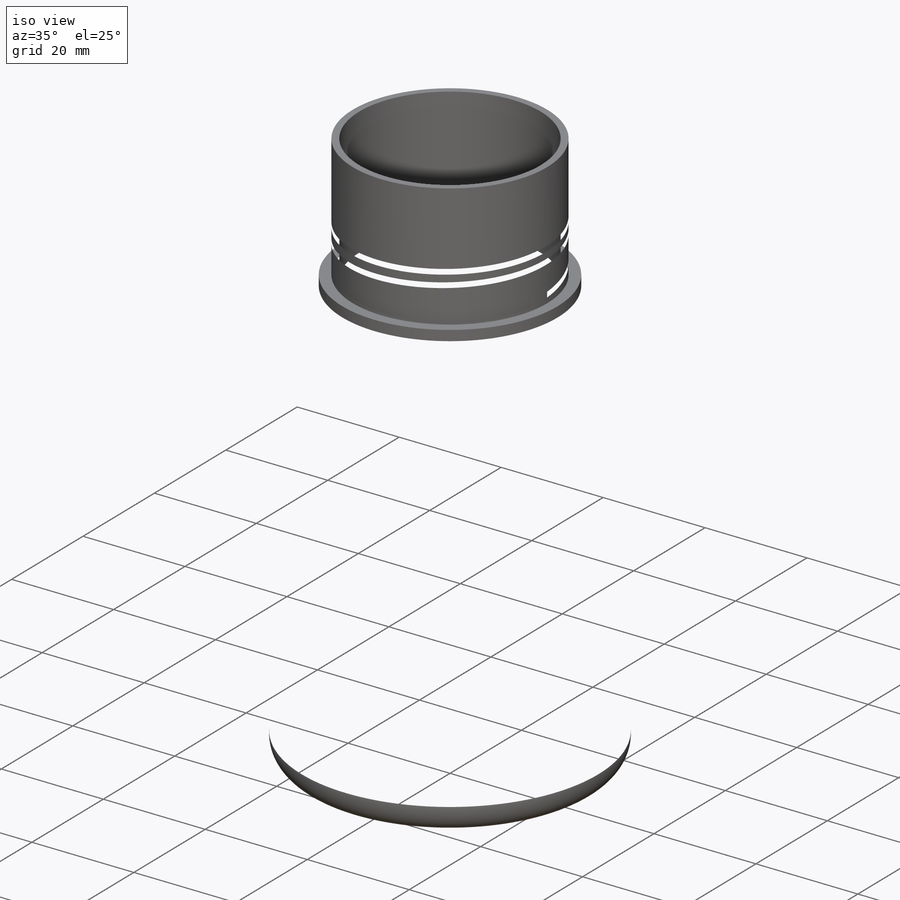
[diagram: iso view]
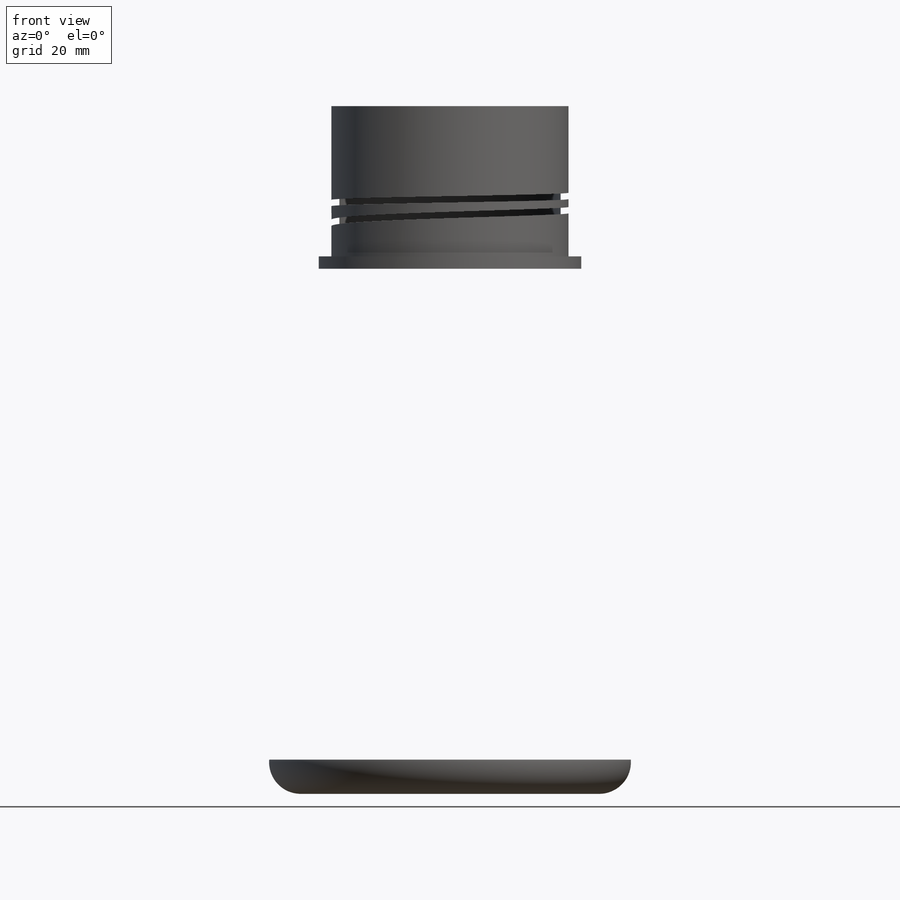
[diagram: front view]
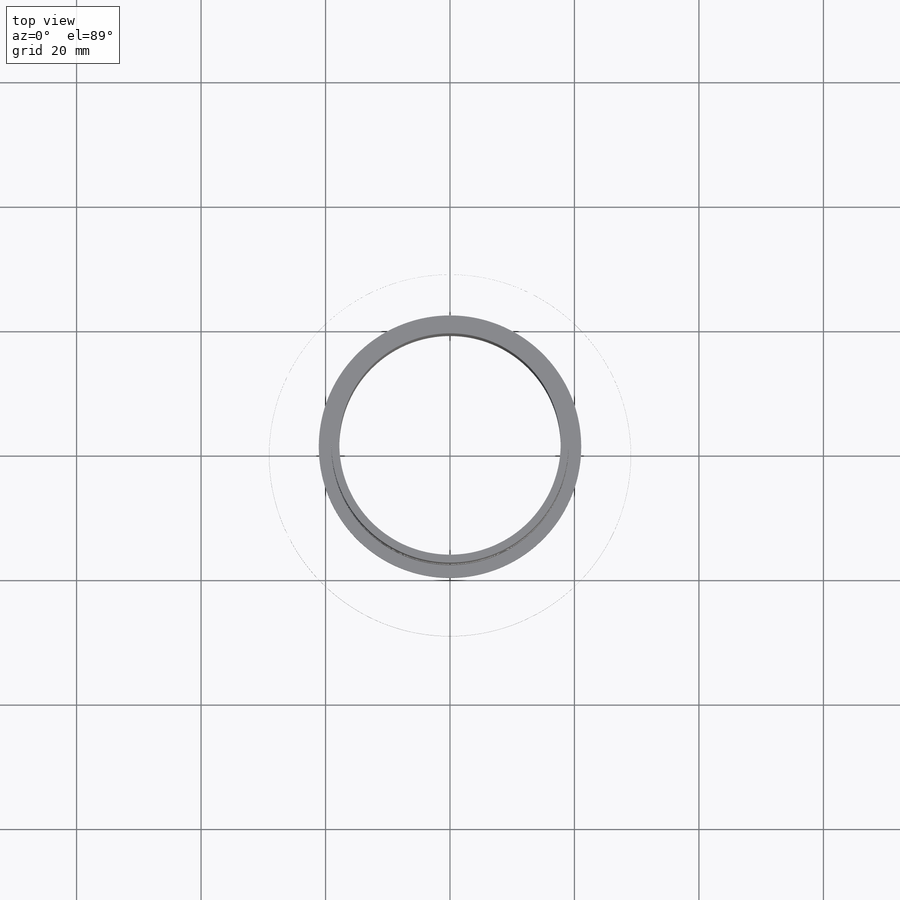
[diagram: top view]
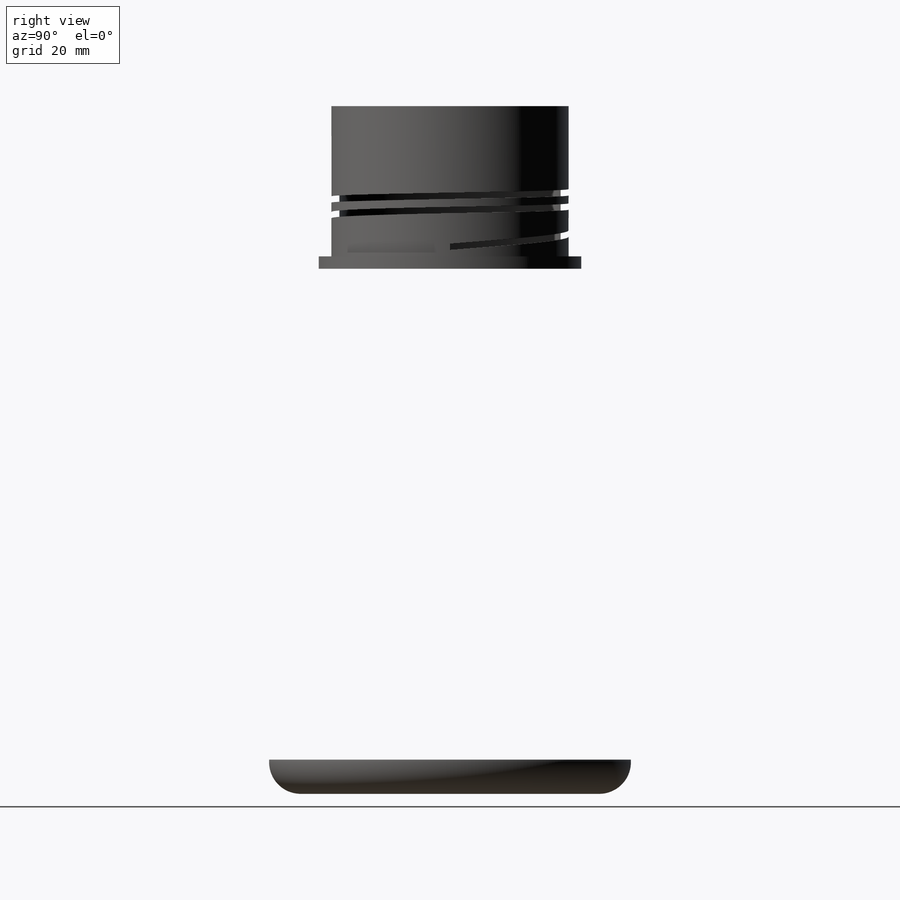
[diagram: right view]
SOLIDWORKS PART (.sldprt)
format: sldprt  version: not decoded by parser v0  size: 4,339,200 bytes
history: native  units: mm
features: sketch x19, plane x6, sweep x4, fillet x4, cut_extrude x3, revolve x2, extrude x2, helix x2, move_body x2, material x1, pattern_circular x1, boolean_combine x1, shell x1 (+13 scaffold rows collapsed)
feature tree (61):
  scaffold x13  (default folders/planes/origin — collapsed)
  material  "Material <not specified>"
  sketch  "Sketch1"  dims[c1.D9=10.16mm c1.D10=5.08mm c1.D8=2.032mm c1.D11=10.16mm c2.D9=10.16mm c2.D12=187.96mm c2.D13=40.64mm c3.D12=15.24mm c3.D13=99.06mm c3.D14=33.02mm c3.D2=5.08mm c3.D15=~50.883883mm c3.D1=152.4mm c4.D2=31.75mm c4.D3=38.1mm c4.D4=20.701mm c4.D5=20.32mm c4.D6=1.27mm c4.D7=17.78mm c4.D8=2.54mm c4.D11=~0.803279mm c4.D12=~13.829222mm c5.D2=50.8mm c5.D14=~45.739925mm c5.D15=2.54mm c5.D16=58.42mm c6.D2=29.21mm c6.D15=50.8mm c6.D16=~21.658464mm c6.D17=~13.146856mm c6.D18=21.59mm c6.D19=~22.066312mm c6.D20=~22.668555mm c6.D21=~23.985227mm c6.D22=~24.792166mm c6.D23=~27.249396mm c6.D24=~27.519761mm c6.D25=~29.04746mm c6.D26=~31.11783mm c6.D27=31.75mm c6.D28=~54.935302mm c6.D29=~120.673281mm c7.D16=50.8mm c7.D17=~52.052571mm c7.D18=55.88mm c7.D19=~56.304491mm c7.D20=~72.825355mm c7.D21=~79.996709mm c7.D22=~86.305406mm c7.D23=~89.459755mm c7.D24=~112.933943mm c7.D25=~113.700811mm c7.D26=~118.768078mm c7.D27=~120.378557mm c7.D28=~123.906453mm c7.D29=~130.667442mm c8.D16=~130.667442mm c8.D10=50.8mm c9.D16=~21.658464mm c9.D17=~13.146856mm c9.D18=21.59mm c9.D19=~22.066312mm c9.D20=~22.668555mm c9.D21=~23.985227mm c9.D22=~24.792166mm c9.D23=~27.249396mm c9.D24=~27.519761mm c9.D25=~29.04746mm c9.D26=~31.11783mm c9.D27=31.75mm c9.D28=~54.935302mm c9.D29=~120.673281mm c10.D16=~21.658464mm c10.D17=~13.146856mm c10.D18=21.59mm c10.D19=~22.066312mm c10.D20=~22.668555mm c10.D21=~23.985227mm]
  revolve  "Revolve2"  Angle=360deg
  sketch  "Sketch21"  dims[D1=35.56mm D2=38.1mm]
  extrude  "Boss-Extrude4"  Depth=8.89mm
  sketch  "Sketch5"  dims[D1=0.889mm D2=1.27mm D3=1.651mm]
  revolve  "Revolve3"  Angle=360deg
  sketch  "Sketch6"  dims[c1.D1=~0.93617mm c2.D1=110.0deg c2.D2=~0.543456mm c3.D2=110.0deg c3.D3=0.762mm c3.D4=11.43mm c3.D5=1.016mm c4.D4=10.668mm]
  plane  "Plane1"  Offset=1.778mm
  sketch  "Sketch7"
  helix  "Helix/Spiral1"  Pitch=5.08mm
  sweep  "Sweep1"
  sketch  "Sketch8"  dims[D1=0.0mm]
  plane  "Plane2"  Offset=10.668mm
  sketch  "Sketch9"  dims[D1=3.175mm]
  sweep  "Sweep2"
  sketch  "Sketch10"  dims[D1=0.0mm]
  plane  "Plane3"  Offset=5.588mm
  sketch  "Sketch11"  dims[D1=3.175mm]
  sweep  "Sweep3"
  sketch  "Sketch22"  dims[D1=~27.105905mm]
  pattern_circular  "CirPattern1"  Count=2 Angle=180deg
  sketch  "Sketch12"  dims[c1.D1=12.065mm c2.D1=30.0deg]
  plane  "Plane4"
  sketch  "Sketch13"  dims[c1.D1=0.254mm c2.D1=115.0deg c3.D1=~0.461309mm c3.D2=~0.677333mm c3.D3=~0.465667mm c4.D3=115.0deg c5.D3=~0.423789mm]
  sketch  "Sketch14"  dims[D1=1.27mm]
  cut_extrude  "Cut-Extrude2"  [1 undecoded]
  plane  "Plane5"  Offset=0mm
  move_body  "Body-Move/Copy1"
  move_body  "Body-Move/Copy2"
  boolean_combine  "Combine1"
  sketch  "Sketch15"  dims[D1=0.0mm]
  sketch  "Sketch17"  dims[D2=22.86mm D1=0.0mm]
  cut_extrude  "Cut-Extrude5"  Depth=2.54mm
  fillet  "Fillet4"  Radius=17.78mm
  shell  "Shell2"  Thickness=1.016mm
  sketch  "Sketch18"  dims[D2=42.164mm D1=0.0mm]
  extrude  "Boss-Extrude2"  [1 undecoded]
  plane  "Plane6"  Offset=1.016mm
  sketch  "Sketch24"
  helix  "Helix/Spiral3"  Pitch=5.9055mm
  sketch  "Sketch25"  dims[c1.D1=1.016mm c1.D2=0.762mm c2.D2=110.0deg c2.D3=0.762mm c3.D3=110.0deg c3.D4=0.762mm c3.D5=~0.277345mm c3.D6=1.016mm c3.D2=0.635mm c4.D3=0.635mm c5.D3=~113.593987deg c5.D4=0.635mm c6.D4=~113.593987deg]
  sweep  "Sweep4"
  fillet  "Fillet6"  Radius=7.62mm
  fillet  "Fillet7"  Radius=7.62mm
  sketch  "Sketch26"  dims[D1=0.0mm]
  cut_extrude  "Cut-Extrude6"  [1 undecoded]
  fillet  "Fillet8"  Radius=2.54mm
decode coverage: 29 of 41 modeling features carry decoded parameters
note: ~ marks probable driven/reference dimensions
note: 3 parameter values undecoded
summary: no parameter record found for 3 features | [note 3] (x3 features) parser:v0:name_prior (class ref resolved by constrained assignment + name prior); profile_refs inferred from adjacent sketches, not decoded
note: suppression state not decoded; provenance and decode notes live in map.json
